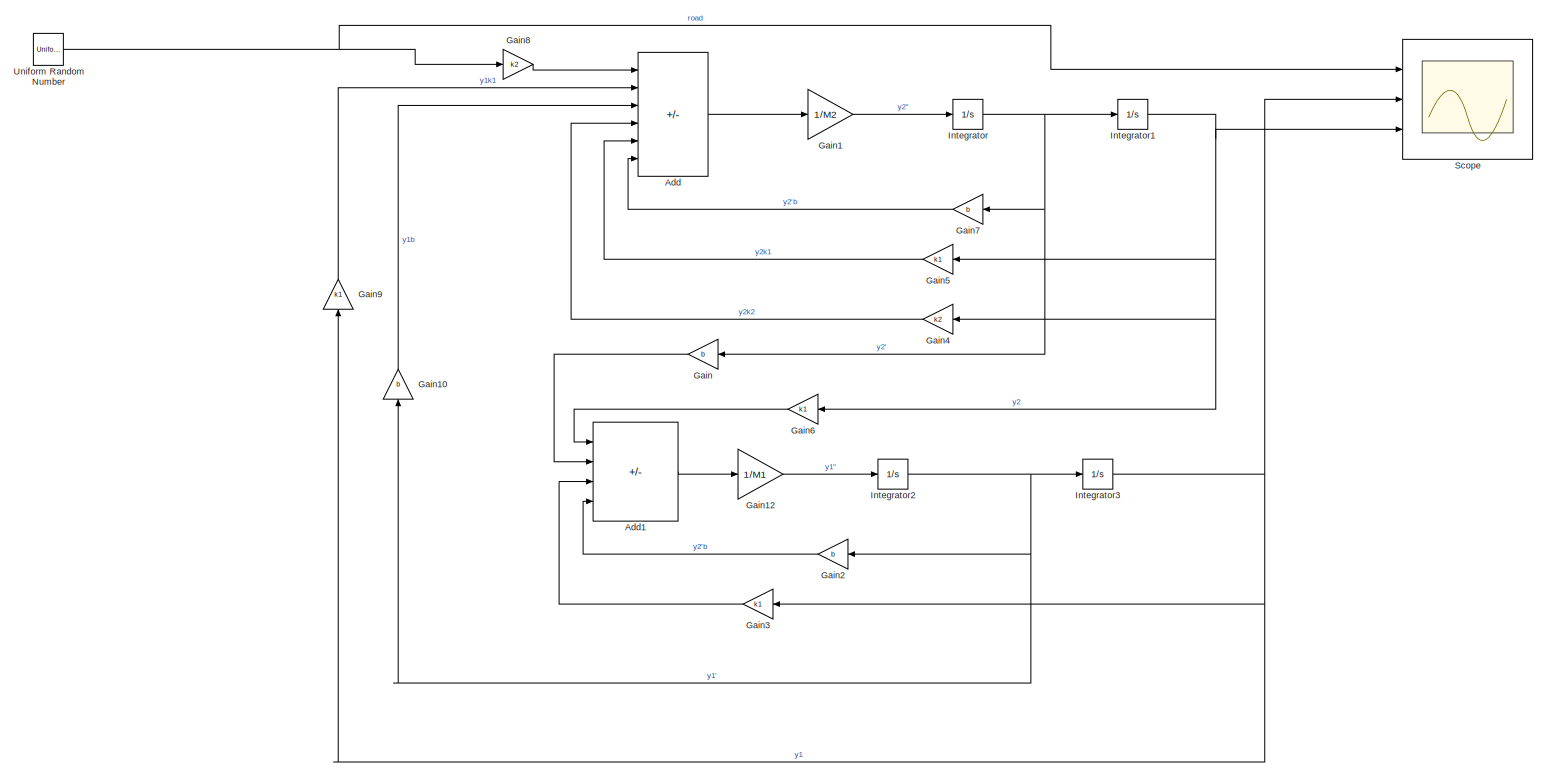
[diagram: root canvas - part 1/1, most of the canvas]
MODEL slx_07104106d31a
KIND model
CONFIG AbsTol = auto
CONFIG EnableMultiTasking = off
CONFIG FixedStep = auto
CONFIG InitFcn = M1=100;\nM2=30;\nb=50;\nk1=10;\nk2=5;\n
CONFIG MaxStep = auto
CONFIG MinStep = auto
CONFIG RelTol = 1e-3
CONFIG SampleTimeConstraint = Unconstrained
CONFIG SolverName = VariableStepAuto
CONFIG StartTime = 0.0
CONFIG StopTime = 100.0
BLOCK [Sum] Add
  IconShape = rectangular
  Inputs = +++---
  Ports = [6, 1]
BLOCK [Sum] Add1
  IconShape = rectangular
  Inputs = ++--
  Ports = [4, 1]
BLOCK [Gain] Gain
  Gain = b
  NameLocation = top
BLOCK [Gain] Gain1
  Gain = 1/M2
BLOCK [Gain] Gain10
  Gain = b
  NameLocation = right
BLOCK [Gain] Gain12
  Gain = 1/M1
BLOCK [Gain] Gain2
  Gain = b
  NameLocation = top
BLOCK [Gain] Gain3
  Gain = k1
  NameLocation = top
BLOCK [Gain] Gain4
  Gain = k2
  NameLocation = top
BLOCK [Gain] Gain5
  Gain = k1
  NameLocation = top
BLOCK [Gain] Gain6
  Gain = k1
  NameLocation = top
BLOCK [Gain] Gain7
  Gain = b
  NameLocation = top
BLOCK [Gain] Gain8
  Gain = k2
BLOCK [Gain] Gain9
  Gain = k1
  NameLocation = right
BLOCK [Integrator] Integrator
  Ports = [1, 1]
BLOCK [Integrator] Integrator1
  Ports = [1, 1]
BLOCK [Integrator] Integrator2
  Ports = [1, 1]
BLOCK [Integrator] Integrator3
  Ports = [1, 1]
BLOCK [Scope] Scope
  Floating = off
  NumInputPorts = 3
  Ports = [3]
  ScopeSpecificationString = Simulink.scopes.TimeScopeBlockCfg('CurrentConfiguration', extmgr.ConfigurationSet(extmgr.Configuration('Core','General UI',true,'FigureColor',[1 1 1]),extmgr.Configuration('Core','Source UI',true),extmgr.Configuration('Sources','WiredSimulink',true),extmgr.Configuration('Visuals','Time Domain',true,'SerializedDisplays',{struct('MinYLimReal','-1.24853','MaxYLimReal','1.24863','YLabelReal','','MinYL...<+2950ch>
BLOCK [UniformRandomNumber] Uniform Random Number
  SampleTime = 0.1
LINE Add1:1 -> Gain12:1
LINE Add:1 -> Gain1:1
LINE Gain10:1 -> Add:3
LINE Gain12:1 -> Integrator2:1
LINE Gain1:1 -> Integrator:1
LINE Gain2:1 -> Add1:4
LINE Gain3:1 -> Add1:3
LINE Gain4:1 -> Add:4
LINE Gain5:1 -> Add:5
LINE Gain6:1 -> Add1:1
LINE Gain7:1 -> Add:6
LINE Gain8:1 -> Add:1
LINE Gain9:1 -> Add:2
LINE Gain:1 -> Add1:2
NET Integrator1:1 -> Gain4:1, Gain5:1, Gain6:1, Scope:3
NET Integrator2:1 -> Gain10:1, Gain2:1, Integrator3:1
NET Integrator3:1 -> Gain3:1, Gain9:1, Scope:2
NET Integrator:1 -> Gain7:1, Gain:1, Integrator1:1
NET Uniform Random Number:1 -> Gain8:1, Scope:1
note: NET lines group one-source signal fan-out (src -> all destinations, sorted); 1:1 wires keep LINE
